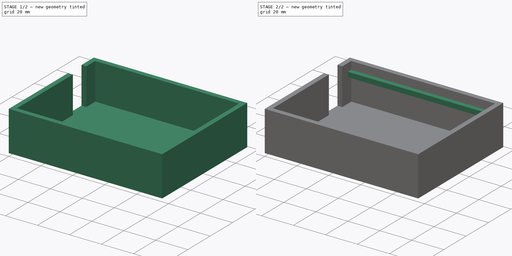
[diagram: build sequence overview — one tinted view per stage of 2, left to right]
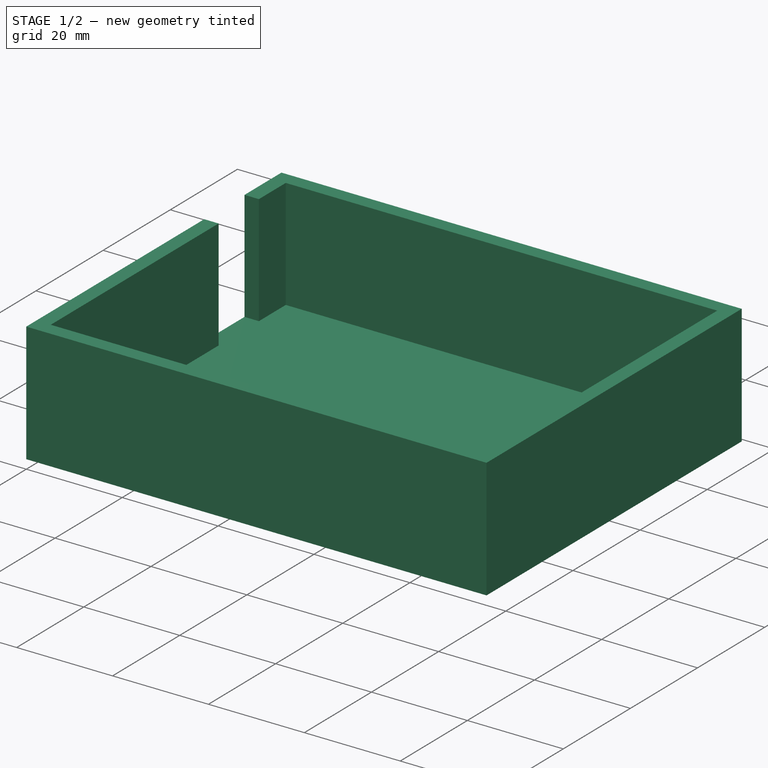
[diagram: stage 1 of 2 — iso view after this stage's code; geometry added in this stage tinted green]
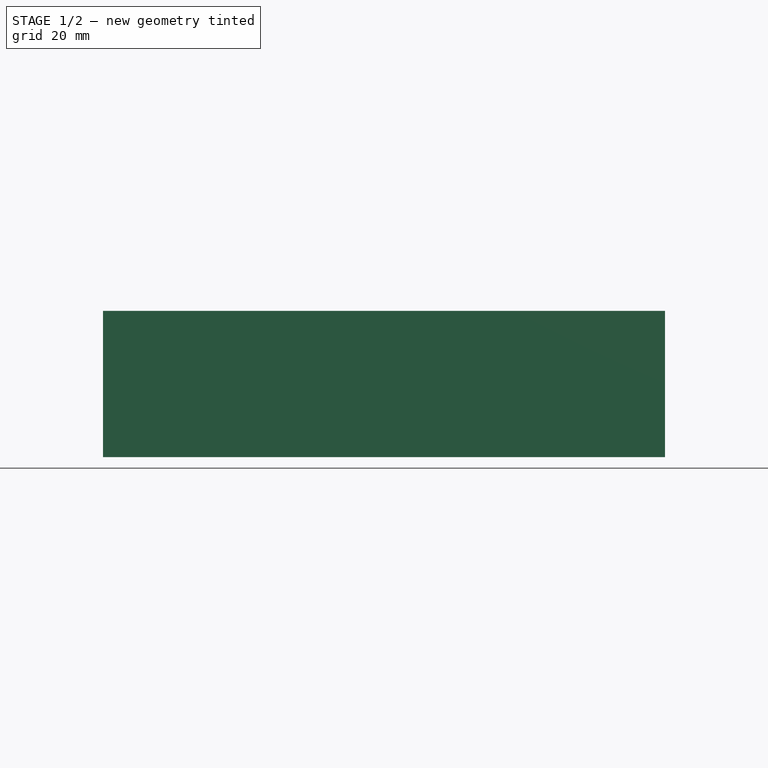
[diagram: stage 1 of 2 — front view after this stage's code; geometry added in this stage tinted green]
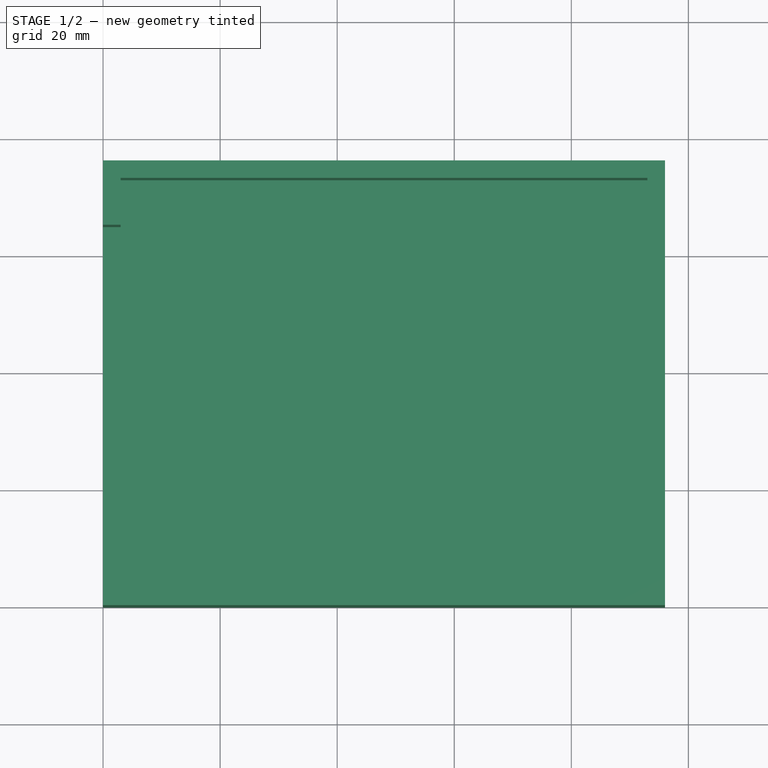
[diagram: stage 1 of 2 — top view after this stage's code; geometry added in this stage tinted green]
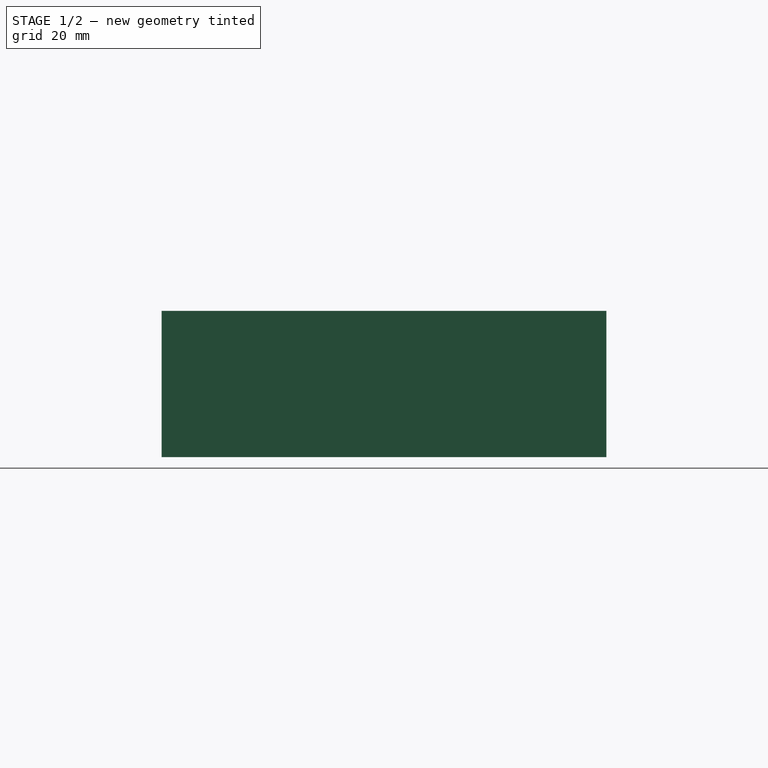
[diagram: stage 1 of 2 — right view after this stage's code; geometry added in this stage tinted green]
FCSTD DOCUMENT  (FreeCAD 1.0R39109 (Git))
Label: portable_base_calculator_case
License: All rights reserved
LicenseURL: https://en.wikipedia.org/wiki/All_rights_reserved
objects: Sketcher::SketchObject×4, PartDesign::Pad×4, PartDesign::Body×1
note: 21 computed .brp shape members not serialized (recipe doc carries the construction recipe); baked Part::Feature solids carry a one-line shape summary decoded from their .brp

FEATURE [Sketcher::SketchObject] Sketch  label="walls_sketch"
  ArcFitTolerance = 1e-06
  FullyConstrained = true
  MakeInternals = false
  sketch-geometry (12):
    g0: LineSegment StartX=0 StartY=0 StartZ=0 EndX=96 EndY=0 EndZ=0
    g1: LineSegment StartX=96 StartY=76 StartZ=0 EndX=4.121e-13 EndY=76 EndZ=0
    g2: LineSegment StartX=3 StartY=73 StartZ=0 EndX=3 EndY=65 EndZ=0
    g3: LineSegment StartX=4.121e-13 StartY=76 StartZ=0 EndX=2.0529e-12 EndY=65 EndZ=0
    g4: LineSegment StartX=3 StartY=53 StartZ=0 EndX=2.811e-13 EndY=53 EndZ=0
    g5: LineSegment StartX=3 StartY=3 StartZ=0 EndX=93 EndY=3 EndZ=0
    g6: LineSegment StartX=3 StartY=73 StartZ=0 EndX=93 EndY=73 EndZ=0
    g7: LineSegment StartX=93 StartY=73 StartZ=0 EndX=93 EndY=3 EndZ=0
    g8: LineSegment StartX=96 StartY=0 StartZ=0 EndX=96 EndY=76 EndZ=0
    g9: LineSegment StartX=2.0529e-12 StartY=65 StartZ=0 EndX=3 EndY=65 EndZ=0
    g10: LineSegment StartX=3 StartY=53 StartZ=0 EndX=3 EndY=3 EndZ=0
    g11: LineSegment StartX=0 StartY=0 StartZ=0 EndX=2.811e-13 EndY=53 EndZ=0
  constraints (35):
    c: Coincident(g3,g1)
    c: Coincident(g6,g2)
    c: Coincident(g7,g6)
    c: Coincident(g7,g5)
    c: Coincident(g8,g0)
    c: Coincident(g8,g1)
    c: Coincident(g9,g3)
    c: Coincident(g9,g2)
    c: Coincident(g10,g4)
    c: Coincident(g10,g5)
    c: Coincident(g11,g0)
    c: Coincident(g11,g4)
    c: Distance(g6,g1) = 3
    c: Distance(g5,g0) = 3
    c: DistanceY(g7,g7) = 70
    c: Distance(g8,g7) = 3
    c: Distance(g10,g11) = 3
    c: Distance(g2,g3) = 3
    c: DistanceY(g10,g10) = 50
    c: Distance(g9,g4) = 12
    c: Parallel(g8,g7)
    c: Parallel(g0,g5)
    c: Parallel(g1,g6)
    c: Parallel(g6,g5)
    c: Parallel(g11,g10)
    c: Parallel(g3,g2)
    c: Parallel(g9,g4)
    c: Perpendicular(g6,g2)
    c: Parallel(g9,g1)
    c: Parallel(g7,g10)
    c: Perpendicular(g7,g5)
    c: DistanceX(g5,g5) = 90
    c: Equal(g5,g6)
    c: Parallel(g0,g-1)
    c: Coincident(g0,g-1)
FEATURE [PartDesign::Pad] Pad  label="walls_pad"
  Direction = (0,0,1)
  Length = 25
  Length2 = 10
  Profile = -> Sketch
  ReferenceAxis = -> Sketch [N_Axis]
  Refine = true
  Suppressed = false
  Type = 0
FEATURE [Sketcher::SketchObject] Sketch001  label="bottom_sketch"
  ArcFitTolerance = 1e-06
  FullyConstrained = true
  MakeInternals = false
  sketch-geometry (4):
    g0: LineSegment StartX=0 StartY=76 StartZ=0 EndX=0 EndY=0 EndZ=0
    g1: LineSegment StartX=0 StartY=0 StartZ=0 EndX=96 EndY=0 EndZ=0
    g2: LineSegment StartX=96 StartY=0 StartZ=0 EndX=96 EndY=76 EndZ=0
    g3: LineSegment StartX=96 StartY=76 StartZ=0 EndX=0 EndY=76 EndZ=0
  constraints (12):
    c: Coincident(g0,g1)
    c: Coincident(g1,g2)
    c: Coincident(g2,g3)
    c: Coincident(g3,g0)
    c: Vertical(g0)
    c: Vertical(g2)
    c: Horizontal(g1)
    c: Horizontal(g3)
    c: PointOnObject(g0,g-2)
    c: PointOnObject(g1,g-1)
    c: DistanceY(g-1,g0) = 76
    c: Distance(g0,g2) = 96
FEATURE [PartDesign::Pad] Pad001  label="bottom_pad"
  BaseFeature = -> Pad
  Direction = (0,0,1)
  Length = 2
  Length2 = 10
  Profile = -> Sketch001
  ReferenceAxis = -> Sketch001 [N_Axis]
  Refine = true
  Suppressed = false
  Type = 0
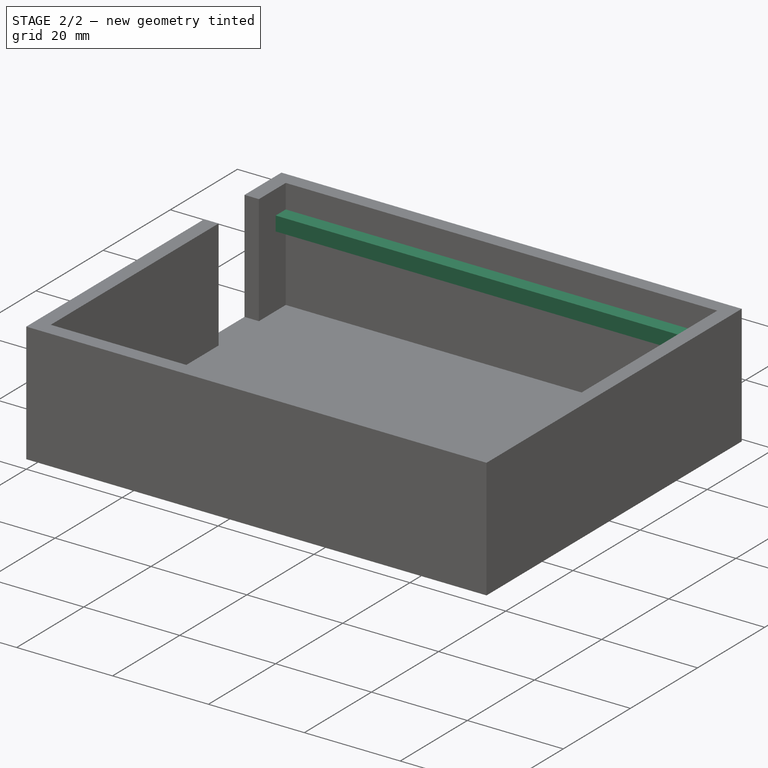
[diagram: stage 2 of 2 — iso view after this stage's code; geometry added in this stage tinted green]
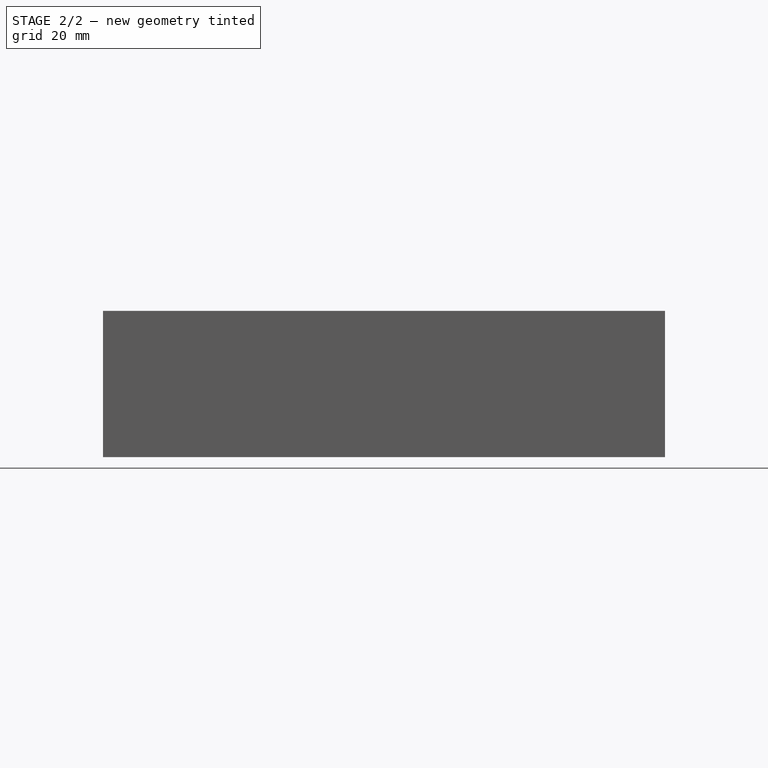
[diagram: stage 2 of 2 — front view after this stage's code; geometry added in this stage tinted green]
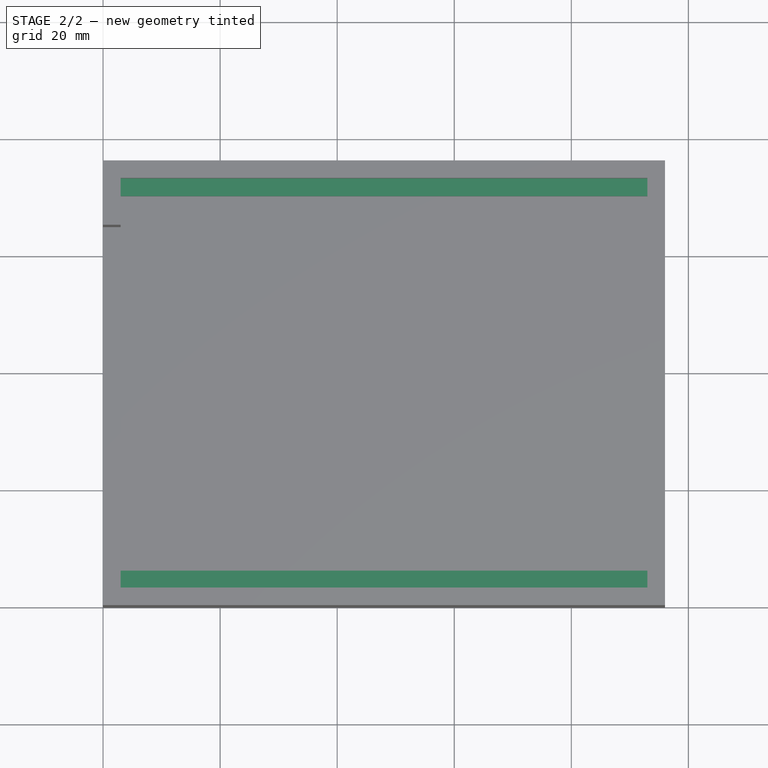
[diagram: stage 2 of 2 — top view after this stage's code; geometry added in this stage tinted green]
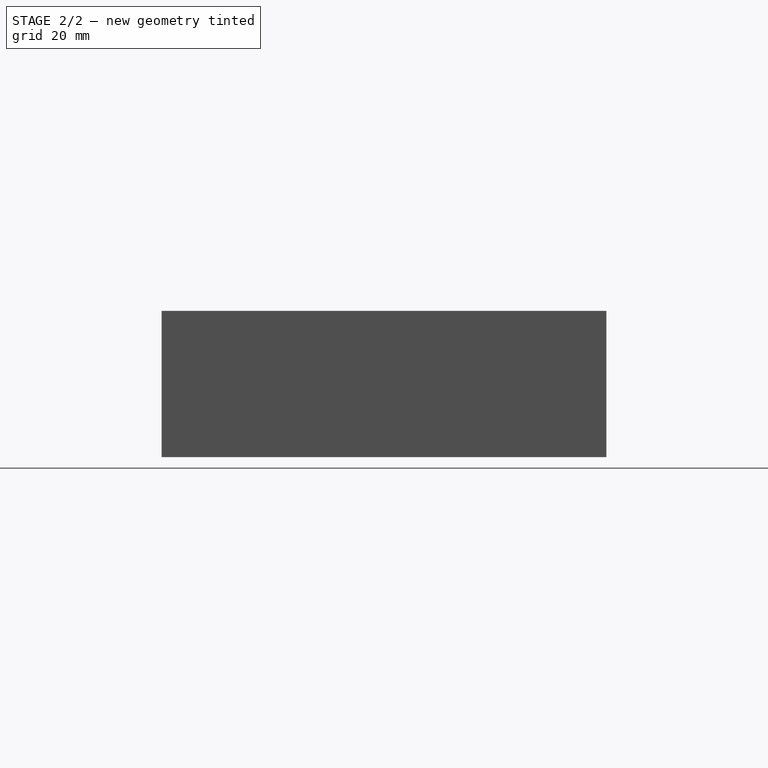
[diagram: stage 2 of 2 — right view after this stage's code; geometry added in this stage tinted green]
FEATURE [Sketcher::SketchObject] Sketch002  label="closing_mechanism_front_sketch"
  ArcFitTolerance = 1e-06
  AttachmentOffset = pos=(0,0,16) rot=(0,0,1;0rad)
  AttachmentSupport = -> [XY_Plane]
  FullyConstrained = true
  MakeInternals = false
  MapMode = 5
  Placement = pos=(0,0,16) rot=(0,0,1;0rad)
  sketch-geometry (4):
    g0: LineSegment StartX=0 StartY=6 StartZ=0 EndX=0 EndY=3 EndZ=0
    g1: LineSegment StartX=0 StartY=3 StartZ=0 EndX=96 EndY=3 EndZ=0
    g2: LineSegment StartX=96 StartY=3 StartZ=0 EndX=96 EndY=6 EndZ=0
    g3: LineSegment StartX=96 StartY=6 StartZ=0 EndX=0 EndY=6 EndZ=0
  constraints (12):
    c: Coincident(g0,g1)
    c: Coincident(g1,g2)
    c: Coincident(g2,g3)
    c: Coincident(g3,g0)
    c: Vertical(g0)
    c: Vertical(g2)
    c: Horizontal(g1)
    c: Horizontal(g3)
    c: PointOnObject(g0,g-2)
    c: DistanceX(g3,g3) = 96
    c: Distance(g0,g0) = 3
    c: Distance(g-1,g1) = 3
FEATURE [PartDesign::Pad] Pad002  label="closing_mechanism_front_pad"
  BaseFeature = -> Pad001
  Direction = (0,0,1)
  Length = 3
  Length2 = 10
  Profile = -> Sketch002
  ReferenceAxis = -> Sketch002 [N_Axis]
  Refine = true
  Suppressed = false
  Type = 0
FEATURE [Sketcher::SketchObject] Sketch003  label="closing_mechanism_back_sketch"
  ArcFitTolerance = 1e-06
  FullyConstrained = true
  MakeInternals = false
  Placement = pos=(0,0,17) rot=(0,0,1;0rad)
  sketch-geometry (4):
    g0: LineSegment StartX=0 StartY=70 StartZ=0 EndX=0 EndY=73 EndZ=0
    g1: LineSegment StartX=0 StartY=73 StartZ=0 EndX=96 EndY=73 EndZ=0
    g2: LineSegment StartX=96 StartY=73 StartZ=0 EndX=96 EndY=70 EndZ=0
    g3: LineSegment StartX=96 StartY=70 StartZ=0 EndX=0 EndY=70 EndZ=0
  constraints (12):
    c: Coincident(g0,g1)
    c: Coincident(g1,g2)
    c: Coincident(g2,g3)
    c: Coincident(g3,g0)
    c: Vertical(g0)
    c: Vertical(g2)
    c: Horizontal(g1)
    c: Horizontal(g3)
    c: PointOnObject(g0,g-2)
    c: Distance(g2,g2) = 3
    c: DistanceX(g3,g3) = 96
    c: Distance(g-1,g1) = 73
FEATURE [PartDesign::Pad] Pad003  label="closing_mechanism_back_pad"
  BaseFeature = -> Pad002
  Direction = (0,0,1)
  Length = 3
  Length2 = 10
  Profile = -> Sketch003
  ReferenceAxis = -> Sketch003 [N_Axis]
  Refine = true
  Suppressed = false
  Type = 0
FEATURE [PartDesign::Body] Body  label="Case_Bottom_body"
  AllowCompound = false
  Group = -> [Sketch,Pad,Sketch001,Pad001,Sketch002,Pad002,Sketch003,Pad003]
  Origin = -> Origin
  Tip = -> Pad003
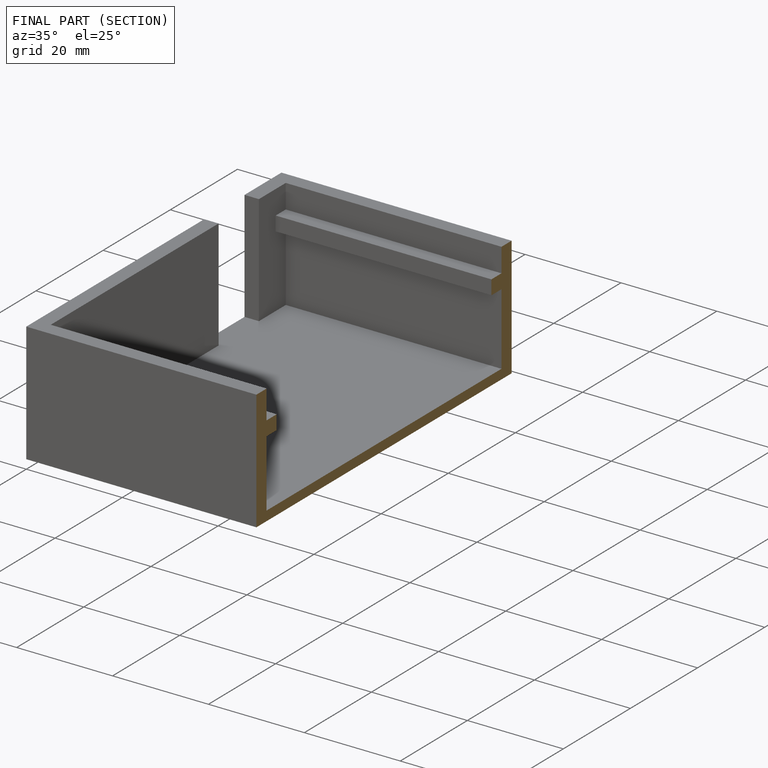
[diagram: finished part — half-section view (interior)]
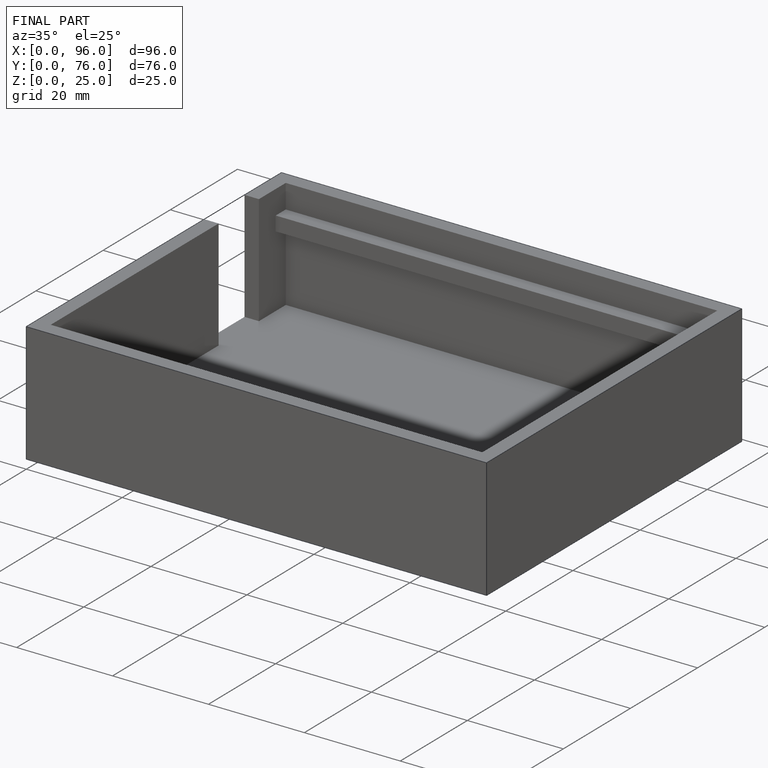
[diagram: finished part — iso view with bounding-box wireframe]
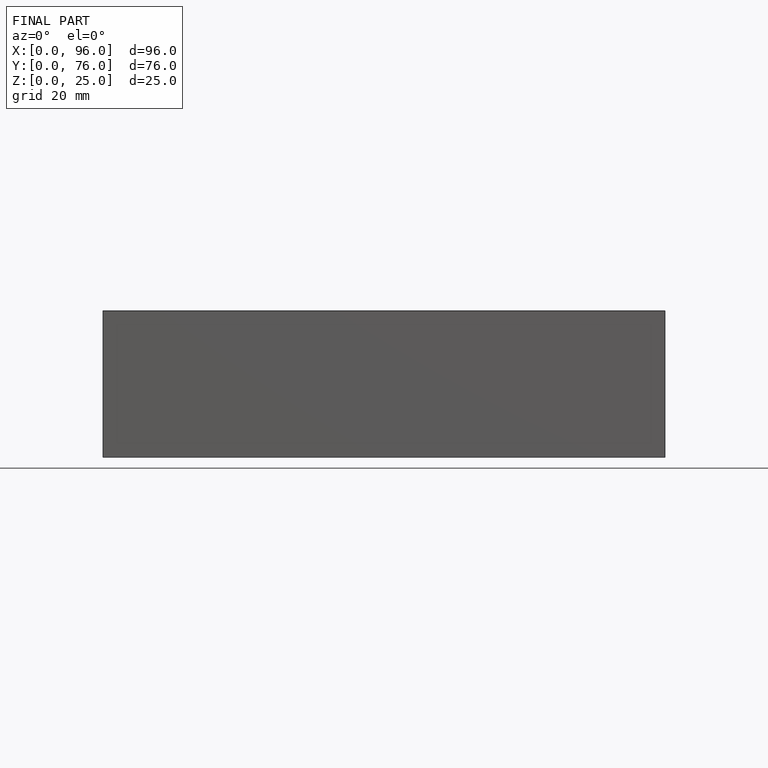
[diagram: finished part — front view with bounding-box wireframe]
